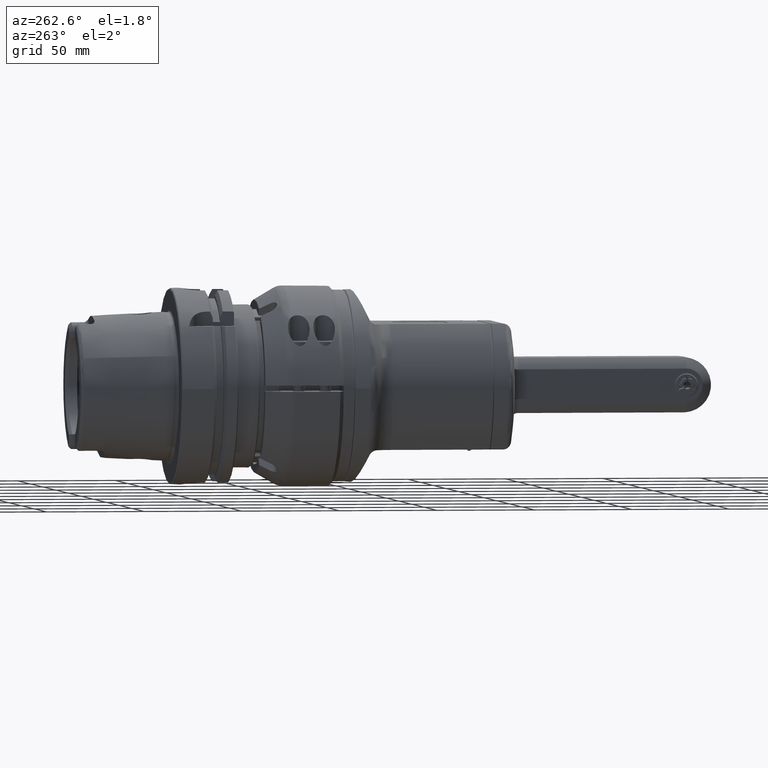
[diagram: clean part render]
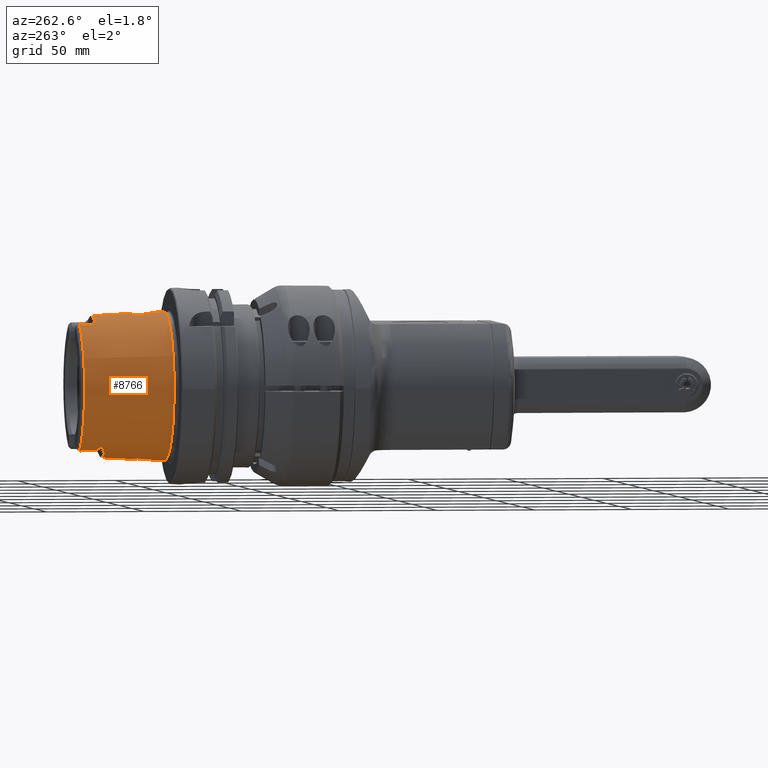
[diagram: same view with one face highlighted and labeled with its STEP entity id]
A machine part, auxiliary view. The second image highlights one B-rep face of the part: STEP entity #8766.
In plain terms, the highlighted conical surface has half-angle 2.868 deg.
Its self-contained STEP definition (entity closure, byte-faithful):
#101=CONICAL_SURFACE('',#9639,36.74017294717,0.0500570901447486);
#200=(
BOUNDED_CURVE()
B_SPLINE_CURVE(2,(#56577,#56578,#56579),.UNSPECIFIED.,.F.,.F.)
B_SPLINE_CURVE_WITH_KNOTS((3,3),(2.97141344392928,3.96265835988855),
 .UNSPECIFIED.)
CURVE()
GEOMETRIC_REPRESENTATION_ITEM()
RATIONAL_B_SPLINE_CURVE((1.02464110441185,1.02628589834782,1.02628589827356))
REPRESENTATION_ITEM('')
);
#201=(
BOUNDED_CURVE()
B_SPLINE_CURVE(2,(#56646,#56647,#56648),.UNSPECIFIED.,.F.,.F.)
B_SPLINE_CURVE_WITH_KNOTS((3,3),(3.9626582701818,4.95390318622074),
 .UNSPECIFIED.)
CURVE()
GEOMETRIC_REPRESENTATION_ITEM()
RATIONAL_B_SPLINE_CURVE((1.02628589827313,1.02628589834766,1.02464110441169))
REPRESENTATION_ITEM('')
);
#277=FACE_BOUND('',#1527,.T.);
#278=FACE_BOUND('',#1528,.T.);
#964=FACE_OUTER_BOUND('',#1526,.T.);
#1526=EDGE_LOOP('',(#7598,#7599,#7600,#7601,#7602,#7603,#7604,#7605,#7606,
#7607,#7608,#7609,#7610,#7611,#7612,#7613,#7614,#7615,#7616,#7617,#7618));
#1527=EDGE_LOOP('',(#7619));
#1528=EDGE_LOOP('',(#7620,#7621));
#1784=B_SPLINE_CURVE_WITH_KNOTS('',3,(#56558,#56559,#56560,#56561,#56562,
#56563,#56564,#56565,#56566,#56567,#56568,#56569,#56570,#56571,#56572,#56573,
#56574,#56575),.UNSPECIFIED.,.F.,.F.,(4,2,2,2,2,2,2,2,4),(1.95351747742074,
1.96415168134067,1.9747858852606,1.99605429310045,2.07500752198644,2.15396075087244,
2.37309502710521,2.59222930333799,2.83524321414784),.UNSPECIFIED.);
#1785=B_SPLINE_CURVE_WITH_KNOTS('',3,(#56581,#56582,#56583,#56584,#56585,
#56586,#56587,#56588,#56589,#56590,#56591,#56592,#56593,#56594,#56595,#56596,
#56597,#56598,#56599),.UNSPECIFIED.,.F.,.F.,(4,2,2,2,2,2,3,2,4),(0.880850159135021,
1.06197193937717,1.12429506029204,1.14773343290938,1.16113788293459,1.16784010794719,
1.1745423329598,1.1812615850908,1.18523491439442),.UNSPECIFIED.);
#1786=B_SPLINE_CURVE_WITH_KNOTS('',3,(#56601,#56602,#56603,#56604,#56605,
#56606,#56607,#56608,#56609,#56610,#56611,#56612),.UNSPECIFIED.,.F.,.F.,
(4,2,2,2,2,4),(-2.21811633364772,-2.19053511535296,-2.02523452835063,-1.9375169475588,
-1.89629131750475,-1.88277978154764),.UNSPECIFIED.);
#1787=B_SPLINE_CURVE_WITH_KNOTS('',3,(#56616,#56617,#56618,#56619,#56620,
#56621,#56622,#56623,#56624,#56625),.UNSPECIFIED.,.F.,.F.,(4,2,2,2,4),(-0.968342178380193,
-0.916829721728276,-0.81436746422335,-0.475336799953219,-0.355883563659341),
 .UNSPECIFIED.);
#1788=B_SPLINE_CURVE_WITH_KNOTS('',3,(#56627,#56628,#56629,#56630,#56631,
#56632,#56633,#56634,#56635,#56636,#56637,#56638,#56639,#56640,#56641,#56642,
#56643,#56644),.UNSPECIFIED.,.F.,.F.,(4,2,2,2,2,2,2,2,4),(0.576465429523074,
0.580438758827661,0.587158010958199,0.593860235970344,0.60056246098249,
0.613966911006781,0.63740528362252,0.699728404533146,0.880850184762865),
 .UNSPECIFIED.);
#1789=B_SPLINE_CURVE_WITH_KNOTS('',3,(#56650,#56651,#56652,#56653,#56654,
#56655,#56656,#56657,#56658,#56659,#56660,#56661,#56662,#56663,#56664,#56665,
#56666,#56667),.UNSPECIFIED.,.F.,.F.,(4,2,2,2,2,2,2,2,4),(1.0717917443354,
1.31480565516204,1.53393993138363,1.75307420760523,1.83202743648706,1.91098066536889,
1.93224907320764,1.94288327712701,1.95351748104638),.UNSPECIFIED.);
#1790=B_SPLINE_CURVE_WITH_KNOTS('',3,(#56671,#56672,#56673,#56674,#56675,
#56676,#56677,#56678),.UNSPECIFIED.,.F.,.F.,(4,2,2,4),(2.25015551751675,
2.37309502814378,2.59222930392852,2.83524321428847),.UNSPECIFIED.);
#1791=B_SPLINE_CURVE_WITH_KNOTS('',3,(#56680,#56681,#56682,#56683,#56684,
#56685,#56686,#56687,#56688,#56689,#56690,#56691,#56692,#56693),
 .UNSPECIFIED.,.F.,.F.,(4,2,2,2,2,2,4),(0.711766951876582,0.73217229522712,
0.759580173348406,0.791109244943153,0.847374258154563,0.994679561113807,
1.15970822158042),.UNSPECIFIED.);
#1792=B_SPLINE_CURVE_WITH_KNOTS('',3,(#56697,#56698,#56699,#56700,#56701,
#56702,#56703,#56704,#56705,#56706,#56707,#56708,#56709,#56710),
 .UNSPECIFIED.,.F.,.F.,(4,2,2,2,2,2,4),(-0.929951198099741,-0.898553991922293,
-0.853770881530642,-0.802983637328384,-0.726748246761294,-0.48788984865174,
-0.375270817784569),.UNSPECIFIED.);
#1793=B_SPLINE_CURVE_WITH_KNOTS('',3,(#56712,#56713,#56714,#56715,#56716,
#56717,#56718,#56719),.UNSPECIFIED.,.F.,.F.,(4,2,2,4),(1.07179174434778,
1.31480565470068,1.53393993048412,1.65687944114178),.UNSPECIFIED.);
#1794=B_SPLINE_CURVE_WITH_KNOTS('',3,(#56722,#56723,#56724,#56725,#56726,
#56727,#56728,#56729,#56730,#56731,#56732,#56733,#56734,#56735,#56736,#56737,
#56738,#56739,#56740,#56741,#56742,#56743,#56744,#56745,#56746,#56747,#56748,
#56749,#56750,#56751,#56752,#56753,#56754,#56755),.UNSPECIFIED.,.T.,.F.,
(4,2,2,2,2,2,2,2,2,2,2,2,2,2,2,2,4),(-3.62526048863598,-3.4004530432976,
-3.17564559795922,-2.95051015909361,-2.72537472022801,-2.5002392813624,
-2.27510384249679,-2.05029639715841,-1.82548895182003,-1.59713724610656,
-1.36878554039308,-1.14076500815155,-0.912744475910015,-0.684723943668482,
-0.456703411426949,-0.228351705713474,0.),.UNSPECIFIED.);
#1795=B_SPLINE_CURVE_WITH_KNOTS('',3,(#56758,#56759,#56760,#56761,#56762,
#56763,#56764,#56765,#56766,#56767,#56768,#56769,#56770,#56771,#56772,#56773,
#56774,#56775),.UNSPECIFIED.,.F.,.F.,(4,2,2,2,2,2,2,2,4),(-3.62042001085126,
-3.3969087829225,-3.16855707720903,-2.9405365449675,-2.71251601272596,-2.48449548048443,
-2.2564749482429,-2.02812324252942,-1.80461203294813),.UNSPECIFIED.);
#1796=B_SPLINE_CURVE_WITH_KNOTS('',3,(#56776,#56777,#56778,#56779,#56780,
#56781,#56782,#56783,#56784,#56785,#56786,#56787,#56788,#56789,#56790,#56791,
#56792,#56793,#56794,#56795,#56796,#56797,#56798),.UNSPECIFIED.,.F.,.F.,
(4,2,2,2,2,2,2,2,2,3,4),(-1.80461203294813,-1.79977153681595,-1.57496409147757,
-1.35015664613919,-1.12502120727358,-0.899885768407974,-0.674750329542366,
-0.449614890676758,-0.224807445338379,0.,0.00484047778471908),
 .UNSPECIFIED.);
#2327=LINE('',#56554,#2958);
#2958=VECTOR('',#11739,36.74017294717);
#3392=CIRCLE('',#9637,37.88261919706);
#3393=CIRCLE('',#9638,37.88261919706);
#3394=CIRCLE('',#9640,35.59772669727);
#3395=CIRCLE('',#9641,36.25402645881);
#3396=CIRCLE('',#9642,35.59772669727);
#3397=CIRCLE('',#9643,36.00353175058);
#3398=CIRCLE('',#9644,35.59772669727);
#4151=VERTEX_POINT('',#56547);
#4152=VERTEX_POINT('',#56548);
#4153=VERTEX_POINT('',#56553);
#4154=VERTEX_POINT('',#56555);
#4155=VERTEX_POINT('',#56557);
#4156=VERTEX_POINT('',#56576);
#4157=VERTEX_POINT('',#56580);
#4158=VERTEX_POINT('',#56600);
#4159=VERTEX_POINT('',#56613);
#4160=VERTEX_POINT('',#56615);
#4161=VERTEX_POINT('',#56626);
#4162=VERTEX_POINT('',#56645);
#4163=VERTEX_POINT('',#56649);
#4164=VERTEX_POINT('',#56668);
#4165=VERTEX_POINT('',#56670);
#4166=VERTEX_POINT('',#56679);
#4167=VERTEX_POINT('',#56694);
#4168=VERTEX_POINT('',#56696);
#4169=VERTEX_POINT('',#56711);
#4170=VERTEX_POINT('',#56721);
#4171=VERTEX_POINT('',#56756);
#4172=VERTEX_POINT('',#56757);
#5338=EDGE_CURVE('',#4151,#4152,#3392,.T.);
#5340=EDGE_CURVE('',#4152,#4151,#3393,.T.);
#5341=EDGE_CURVE('',#4151,#4153,#2327,.T.);
#5342=EDGE_CURVE('',#4154,#4153,#3394,.T.);
#5343=EDGE_CURVE('',#4155,#4154,#1784,.T.);
#5344=EDGE_CURVE('',#4156,#4155,#200,.T.);
#5345=EDGE_CURVE('',#4157,#4156,#1785,.T.);
#5346=EDGE_CURVE('',#4158,#4157,#1786,.T.);
#5347=EDGE_CURVE('',#4159,#4158,#3395,.T.);
#5348=EDGE_CURVE('',#4160,#4159,#1787,.T.);
#5349=EDGE_CURVE('',#4161,#4160,#1788,.T.);
#5350=EDGE_CURVE('',#4162,#4161,#201,.T.);
#5351=EDGE_CURVE('',#4163,#4162,#1789,.T.);
#5352=EDGE_CURVE('',#4164,#4163,#3396,.T.);
#5353=EDGE_CURVE('',#4165,#4164,#1790,.T.);
#5354=EDGE_CURVE('',#4165,#4166,#1791,.T.);
#5355=EDGE_CURVE('',#4167,#4166,#3397,.T.);
#5356=EDGE_CURVE('',#4168,#4167,#1792,.T.);
#5357=EDGE_CURVE('',#4169,#4168,#1793,.T.);
#5358=EDGE_CURVE('',#4153,#4169,#3398,.T.);
#5359=EDGE_CURVE('',#4170,#4170,#1794,.T.);
#5360=EDGE_CURVE('',#4171,#4172,#1795,.T.);
#5361=EDGE_CURVE('',#4172,#4171,#1796,.T.);
#7598=ORIENTED_EDGE('',*,*,#5338,.F.);
#7599=ORIENTED_EDGE('',*,*,#5341,.T.);
#7600=ORIENTED_EDGE('',*,*,#5342,.F.);
#7601=ORIENTED_EDGE('',*,*,#5343,.F.);
#7602=ORIENTED_EDGE('',*,*,#5344,.F.);
#7603=ORIENTED_EDGE('',*,*,#5345,.F.);
#7604=ORIENTED_EDGE('',*,*,#5346,.F.);
#7605=ORIENTED_EDGE('',*,*,#5347,.F.);
#7606=ORIENTED_EDGE('',*,*,#5348,.F.);
#7607=ORIENTED_EDGE('',*,*,#5349,.F.);
#7608=ORIENTED_EDGE('',*,*,#5350,.F.);
#7609=ORIENTED_EDGE('',*,*,#5351,.F.);
#7610=ORIENTED_EDGE('',*,*,#5352,.F.);
#7611=ORIENTED_EDGE('',*,*,#5353,.F.);
#7612=ORIENTED_EDGE('',*,*,#5354,.T.);
#7613=ORIENTED_EDGE('',*,*,#5355,.F.);
#7614=ORIENTED_EDGE('',*,*,#5356,.F.);
#7615=ORIENTED_EDGE('',*,*,#5357,.F.);
#7616=ORIENTED_EDGE('',*,*,#5358,.F.);
#7617=ORIENTED_EDGE('',*,*,#5341,.F.);
#7618=ORIENTED_EDGE('',*,*,#5340,.F.);
#7619=ORIENTED_EDGE('',*,*,#5359,.T.);
#7620=ORIENTED_EDGE('',*,*,#5360,.T.);
#7621=ORIENTED_EDGE('',*,*,#5361,.T.);
#8766=ADVANCED_FACE('',(#964,#277,#278),#101,.T.);
#9637=AXIS2_PLACEMENT_3D('',#56549,#11732,#11733);
#9638=AXIS2_PLACEMENT_3D('',#56551,#11735,#11736);
#9639=AXIS2_PLACEMENT_3D('',#56552,#11737,#11738);
#9640=AXIS2_PLACEMENT_3D('',#56556,#11740,#11741);
#9641=AXIS2_PLACEMENT_3D('',#56614,#11742,#11743);
#9642=AXIS2_PLACEMENT_3D('',#56669,#11744,#11745);
#9643=AXIS2_PLACEMENT_3D('',#56695,#11746,#11747);
#9644=AXIS2_PLACEMENT_3D('',#56720,#11748,#11749);
#11732=DIRECTION('center_axis',(0.,-1.,1.2270676010003E-16));
#11733=DIRECTION('ref_axis',(-0.901999999999984,5.2976929516558E-17,0.431736030463093));
#11735=DIRECTION('center_axis',(0.,-1.,1.2270676010003E-16));
#11736=DIRECTION('ref_axis',(-0.901999999999984,5.2976929516558E-17,0.431736030463093));
#11737=DIRECTION('center_axis',(0.,-1.,1.2270676010003E-16));
#11738=DIRECTION('ref_axis',(0.901999999999984,-5.29769295165608E-17,-0.431736030463092));
#11739=DIRECTION('',(0.045132641563491,0.998747405449354,-0.0216024251806382));
#11740=DIRECTION('center_axis',(0.,1.,-1.2270676010003E-16));
#11741=DIRECTION('ref_axis',(-0.423589941730021,-1.11154415691394E-16,-0.905854050752745));
#11742=DIRECTION('center_axis',(0.,1.,-1.2270676010003E-16));
#11743=DIRECTION('ref_axis',(0.352841176761012,-1.14814657441685E-16,-0.935683228438933));
#11744=DIRECTION('center_axis',(0.,1.,-1.2270676010003E-16));
#11745=DIRECTION('ref_axis',(0.423589941729375,1.11154415691451E-16,0.905854050753047));
#11746=DIRECTION('center_axis',(0.,1.,-1.2270676010003E-16));
#11747=DIRECTION('ref_axis',(-0.345044748677395,1.15170876028783E-16,0.938586235468086));
#11748=DIRECTION('center_axis',(0.,1.,-1.2270676010003E-16));
#11749=DIRECTION('ref_axis',(-0.423589941730021,-1.11154415691394E-16,-0.905854050752745));
#56547=CARTESIAN_POINT('',(-34.1701225157541,85.4924722021158,16.355291635688));
#56548=CARTESIAN_POINT('',(34.1701225157455,85.4924722021194,-16.3552916356846));
#56549=CARTESIAN_POINT('Origin',(-4.060069640028E-12,85.49247220212,-3.05827066001153E-16));
#56551=CARTESIAN_POINT('Origin',(-4.060069640028E-12,85.49247220212,-3.05827066001153E-16));
#56552=CARTESIAN_POINT('Origin',(-4.060069640028E-12,108.29627228904,-3.10400748128979E-15));
#56553=CARTESIAN_POINT('',(-32.1091494809456,131.100072375972,15.3688212177916));
#56554=CARTESIAN_POINT('',(-33.1396359983508,108.29627228904,15.8620564267387));
#56555=CARTESIAN_POINT('',(-15.0788389774241,131.100072375969,-32.2463449263182));
#56556=CARTESIAN_POINT('Origin',(-4.04773852177651E-12,131.10007237597,
-5.90218791012513E-15));
#56557=CARTESIAN_POINT('',(-17.2220784314341,122.309422442259,-31.6567015512251));
#56558=CARTESIAN_POINT('Ctrl Pts',(-17.2220784153372,122.309422442311,-31.6567015599883));
#56559=CARTESIAN_POINT('Ctrl Pts',(-17.1909406705659,122.309422440013,-31.6736413124103));
#56560=CARTESIAN_POINT('Ctrl Pts',(-17.1602817479295,122.316165079955,-31.6898757871768));
#56561=CARTESIAN_POINT('Ctrl Pts',(-17.1010841481202,122.340529544632,-31.7204736705879));
#56562=CARTESIAN_POINT('Ctrl Pts',(-17.0725575989163,122.358192511476,-31.7348277686473));
#56563=CARTESIAN_POINT('Ctrl Pts',(-16.9913409982195,122.421686058809,-31.7748237733014));
#56564=CARTESIAN_POINT('Ctrl Pts',(-16.943119847744,122.478559894859,-31.7973063151057));
#56565=CARTESIAN_POINT('Ctrl Pts',(-16.7539351570489,122.740236803165,-31.8829715413045));
#56566=CARTESIAN_POINT('Ctrl Pts',(-16.6480990474377,122.999440628543,-31.9234627110339));
#56567=CARTESIAN_POINT('Ctrl Pts',(-16.4551734621441,123.532137453558,-31.9933264788));
#56568=CARTESIAN_POINT('Ctrl Pts',(-16.3734687541302,123.807964404626,-32.019615695522));
#56569=CARTESIAN_POINT('Ctrl Pts',(-16.1127586050632,124.76352042181,-32.0985687614792));
#56570=CARTESIAN_POINT('Ctrl Pts',(-15.9615734496456,125.490974546385,-32.1330159836246));
#56571=CARTESIAN_POINT('Ctrl Pts',(-15.682637857892,126.976696146467,-32.1872927901172));
#56572=CARTESIAN_POINT('Ctrl Pts',(-15.5577250750558,127.735552357204,-32.2055397465087));
#56573=CARTESIAN_POINT('Ctrl Pts',(-15.3110707220721,129.359161243694,-32.2335467174601));
#56574=CARTESIAN_POINT('Ctrl Pts',(-15.1915252095644,130.226206429029,-32.2419810937322));
#56575=CARTESIAN_POINT('Ctrl Pts',(-15.0788389774374,131.10007237597,-32.2463449263096));
#56576=CARTESIAN_POINT('',(-19.7607926843341,120.000000000089,-30.2755742002442));
#56577=CARTESIAN_POINT('Ctrl Pts',(-19.760792684367,120.000000000118,-30.2755742002257));
#56578=CARTESIAN_POINT('Ctrl Pts',(-18.4894012019291,122.309422546289,-30.9672446189069));
#56579=CARTESIAN_POINT('Ctrl Pts',(-17.2220784313653,122.309422442182,-31.6567015512759));
#56580=CARTESIAN_POINT('',(-17.2958116191341,119.229703254579,-31.792233940204));
#56581=CARTESIAN_POINT('Ctrl Pts',(-17.2958117319328,119.229703254563,-31.7922338788359));
#56582=CARTESIAN_POINT('Ctrl Pts',(-17.8261498365252,119.229703248731,-31.5037159987098));
#56583=CARTESIAN_POINT('Ctrl Pts',(-18.4507527759537,119.273514318881,-31.1392529649616));
#56584=CARTESIAN_POINT('Ctrl Pts',(-19.1249903159267,119.429572390918,-30.7155145694505));
#56585=CARTESIAN_POINT('Ctrl Pts',(-19.3283468362131,119.489438730329,-30.5843319325354));
#56586=CARTESIAN_POINT('Ctrl Pts',(-19.5479485937452,119.598596989926,-30.4374233452039));
#56587=CARTESIAN_POINT('Ctrl Pts',(-19.6175869794749,119.639846459348,-30.39010851942));
#56588=CARTESIAN_POINT('Ctrl Pts',(-19.7001264343484,119.71014442129,-30.3324232998638));
#56589=CARTESIAN_POINT('Ctrl Pts',(-19.7308081134273,119.741559546607,-30.3105871269043));
#56590=CARTESIAN_POINT('Ctrl Pts',(-19.7647782233519,119.796112903471,-30.2851739589189));
#56591=CARTESIAN_POINT('Ctrl Pts',(-19.7741376000108,119.815516113189,-30.2779004366636));
#56592=CARTESIAN_POINT('Ctrl Pts',(-19.7867895923066,119.856434014018,-30.2671847325074));
#56593=CARTESIAN_POINT('Ctrl Pts',(-19.7900983204068,119.87794119344,-30.2637329007029));
#56594=CARTESIAN_POINT('Ctrl Pts',(-19.7894865307163,119.900253958639,-30.2627973298188));
#56595=CARTESIAN_POINT('Ctrl Pts',(-19.7888731867636,119.922623409803,-30.2618593821006));
#56596=CARTESIAN_POINT('Ctrl Pts',(-19.7843672324716,119.944184953197,-30.2635160267487));
#56597=CARTESIAN_POINT('Ctrl Pts',(-19.7724984310362,119.976848285303,-30.2693164621919));
#56598=CARTESIAN_POINT('Ctrl Pts',(-19.7670550943,119.988624628288,-30.2721672844563));
#56599=CARTESIAN_POINT('Ctrl Pts',(-19.7607926843164,120.000000000074,-30.2755742002614));
#56600=CARTESIAN_POINT('',(-12.7919133580441,117.999999999998,-33.9222845209035));
#56601=CARTESIAN_POINT('Ctrl Pts',(-12.7919133580431,118.,-33.922284520901));
#56602=CARTESIAN_POINT('Ctrl Pts',(-12.9462563527709,118.,-33.8640825971844));
#56603=CARTESIAN_POINT('Ctrl Pts',(-13.1078601684653,118.00788237048,-33.8015214636964));
#56604=CARTESIAN_POINT('Ctrl Pts',(-14.2887001222671,118.126826413066,-33.3303756139555));
#56605=CARTESIAN_POINT('Ctrl Pts',(-15.1856660504596,118.517364328609,-32.9013763546066));
#56606=CARTESIAN_POINT('Ctrl Pts',(-16.2665692971439,118.979220737936,-32.3477305475557));
#56607=CARTESIAN_POINT('Ctrl Pts',(-16.5464918144985,119.093921469171,-32.1975783895266));
#56608=CARTESIAN_POINT('Ctrl Pts',(-16.9276609812447,119.193538066503,-31.9921216718047));
#56609=CARTESIAN_POINT('Ctrl Pts',(-17.0495968556438,119.216190012626,-31.9260329377716));
#56610=CARTESIAN_POINT('Ctrl Pts',(-17.2149616884379,119.228227541059,-31.8362033218791));
#56611=CARTESIAN_POINT('Ctrl Pts',(-17.2554367563616,119.229703255021,-31.8141989276617));
#56612=CARTESIAN_POINT('Ctrl Pts',(-17.2958116191327,119.229703254577,-31.7922339402014));
#56613=CARTESIAN_POINT('',(12.7919133580459,117.999999999988,-33.9222845208935));
#56614=CARTESIAN_POINT('Origin',(-4.060069640028E-12,118.,-4.29472047619454E-15));
#56615=CARTESIAN_POINT('',(17.2958116191559,119.229703254579,-31.792233940194));
#56616=CARTESIAN_POINT('Ctrl Pts',(17.295811619151,119.229703254615,-31.7922339401848));
#56617=CARTESIAN_POINT('Ctrl Pts',(17.2061086581328,119.229703255601,-31.8410347107309));
#56618=CARTESIAN_POINT('Ctrl Pts',(17.1184606066973,119.222421721539,-31.8886491594871));
#56619=CARTESIAN_POINT('Ctrl Pts',(16.8557389483145,119.181972694756,-32.0310465175738));
#56620=CARTESIAN_POINT('Ctrl Pts',(16.6786340103077,119.130256357617,-32.1266727712629));
#56621=CARTESIAN_POINT('Ctrl Pts',(15.844758539429,118.827193141583,-32.5702452190954));
#56622=CARTESIAN_POINT('Ctrl Pts',(15.0274939144756,118.393492827711,-32.9882754200444));
#56623=CARTESIAN_POINT('Ctrl Pts',(13.7106306084529,118.076543459956,-33.5594226413758));
#56624=CARTESIAN_POINT('Ctrl Pts',(13.271713052681,117.99999999999,-33.7413546038922));
#56625=CARTESIAN_POINT('Ctrl Pts',(12.7919133580472,117.999999999991,-33.9222845208968));
#56626=CARTESIAN_POINT('',(19.7607926841759,120.000000000079,-30.2755742003442));
#56627=CARTESIAN_POINT('Ctrl Pts',(19.7607926841618,120.000000000068,-30.2755742003574));
#56628=CARTESIAN_POINT('Ctrl Pts',(19.7670550941475,119.988624628279,-30.2721672845511));
#56629=CARTESIAN_POINT('Ctrl Pts',(19.7724984308854,119.976848285291,-30.2693164622859));
#56630=CARTESIAN_POINT('Ctrl Pts',(19.7843672323216,119.944184953183,-30.2635160268423));
#56631=CARTESIAN_POINT('Ctrl Pts',(19.7888731866133,119.92262340979,-30.2618593821944));
#56632=CARTESIAN_POINT('Ctrl Pts',(19.7900983202564,119.87794119343,-30.2637329007966));
#56633=CARTESIAN_POINT('Ctrl Pts',(19.7867895921564,119.856434014009,-30.2671847326008));
#56634=CARTESIAN_POINT('Ctrl Pts',(19.7741375998613,119.815516113182,-30.2779004367564));
#56635=CARTESIAN_POINT('Ctrl Pts',(19.7647782232029,119.796112903465,-30.2851739590112));
#56636=CARTESIAN_POINT('Ctrl Pts',(19.7308081132802,119.741559546605,-30.3105871269949));
#56637=CARTESIAN_POINT('Ctrl Pts',(19.700126434203,119.71014442129,-30.332423299953));
#56638=CARTESIAN_POINT('Ctrl Pts',(19.617586979334,119.639846459351,-30.3901085195054));
#56639=CARTESIAN_POINT('Ctrl Pts',(19.5479485936082,119.598596989932,-30.4374233452863));
#56640=CARTESIAN_POINT('Ctrl Pts',(19.3283468360883,119.489438730342,-30.5843319326083));
#56641=CARTESIAN_POINT('Ctrl Pts',(19.1249903158133,119.429572390934,-30.715514569515));
#56642=CARTESIAN_POINT('Ctrl Pts',(18.4507527758785,119.273514318906,-31.1392529649993));
#56643=CARTESIAN_POINT('Ctrl Pts',(17.8261498353228,119.229703254591,-31.5037159965867));
#56644=CARTESIAN_POINT('Ctrl Pts',(17.2958117319249,119.229703254591,-31.7922338788342));
#56645=CARTESIAN_POINT('',(17.2220784310259,122.309422441989,-31.6567015514451));
#56646=CARTESIAN_POINT('Ctrl Pts',(17.2220784309622,122.30942244181,-31.656701551512));
#56647=CARTESIAN_POINT('Ctrl Pts',(18.4894012016372,122.309422546284,-30.9672446190825));
#56648=CARTESIAN_POINT('Ctrl Pts',(19.7607926841856,120.000000000091,-30.2755742003404));
#56649=CARTESIAN_POINT('',(15.0788389774159,131.100072375969,-32.2463449263182));
#56650=CARTESIAN_POINT('Ctrl Pts',(15.0788389774255,131.10007237597,-32.2463449263114));
#56651=CARTESIAN_POINT('Ctrl Pts',(15.1915252095644,130.226206428918,-32.2419810937346));
#56652=CARTESIAN_POINT('Ctrl Pts',(15.3110707220854,129.359161243472,-32.2335467174623));
#56653=CARTESIAN_POINT('Ctrl Pts',(15.5577250750851,127.735552356871,-32.2055397465092));
#56654=CARTESIAN_POINT('Ctrl Pts',(15.6826378579215,126.976696146129,-32.1872927901176));
#56655=CARTESIAN_POINT('Ctrl Pts',(15.9615734496757,125.49097454604,-32.1330159836249));
#56656=CARTESIAN_POINT('Ctrl Pts',(16.1127586050939,124.763520421461,-32.0985687614793));
#56657=CARTESIAN_POINT('Ctrl Pts',(16.3734687541618,123.807964404272,-32.0196156955215));
#56658=CARTESIAN_POINT('Ctrl Pts',(16.455173462176,123.532137453203,-31.9933264787994));
#56659=CARTESIAN_POINT('Ctrl Pts',(16.6480990474702,122.999440628187,-31.9234627110328));
#56660=CARTESIAN_POINT('Ctrl Pts',(16.7539351570817,122.740236802808,-31.8829715413032));
#56661=CARTESIAN_POINT('Ctrl Pts',(16.9431198477778,122.478559894501,-31.7973063151037));
#56662=CARTESIAN_POINT('Ctrl Pts',(16.9913409982536,122.421686058451,-31.7748237732992));
#56663=CARTESIAN_POINT('Ctrl Pts',(17.0725575989509,122.358192511118,-31.7348277686447));
#56664=CARTESIAN_POINT('Ctrl Pts',(17.1010841481549,122.340529544275,-31.7204736705851));
#56665=CARTESIAN_POINT('Ctrl Pts',(17.1602817479645,122.316165079598,-31.6898757871738));
#56666=CARTESIAN_POINT('Ctrl Pts',(17.1909406705374,122.309422441953,-31.6736413122903));
#56667=CARTESIAN_POINT('Ctrl Pts',(17.2220784153724,122.309422441954,-31.656701559985));
#56668=CARTESIAN_POINT('',(15.0788389774059,131.100072375741,32.2463449263418));
#56669=CARTESIAN_POINT('Origin',(-4.04773852177651E-12,131.10007237597,
-5.90218791012513E-15));
#56670=CARTESIAN_POINT('',(16.0738114170159,124.999999999981,32.104236002674));
#56671=CARTESIAN_POINT('Ctrl Pts',(16.0738114170184,124.999999999982,32.1042360026792));
#56672=CARTESIAN_POINT('Ctrl Pts',(15.9831851934085,125.40538976505,32.1268973905207));
#56673=CARTESIAN_POINT('Ctrl Pts',(15.9003503852971,125.817072870104,32.1449291009408));
#56674=CARTESIAN_POINT('Ctrl Pts',(15.6826378579059,126.976696145585,32.1872927901556));
#56675=CARTESIAN_POINT('Ctrl Pts',(15.5577250750672,127.735552356349,32.2055397465469));
#56676=CARTESIAN_POINT('Ctrl Pts',(15.3110707220534,129.35916124306,32.2335467175004));
#56677=CARTESIAN_POINT('Ctrl Pts',(15.191525209522,130.226206428595,32.2419810937725));
#56678=CARTESIAN_POINT('Ctrl Pts',(15.0788389773738,131.100072375737,32.2463449263484));
#56679=CARTESIAN_POINT('',(12.4228295644059,122.999999999992,33.7924193293147));
#56680=CARTESIAN_POINT('Ctrl Pts',(16.0738114170158,124.999999999981,32.1042360026806));
#56681=CARTESIAN_POINT('Ctrl Pts',(16.0827312175113,124.96009989509,32.1020055769781));
#56682=CARTESIAN_POINT('Ctrl Pts',(16.0870940726199,124.919061705604,32.1021180063972));
#56683=CARTESIAN_POINT('Ctrl Pts',(16.0839989881563,124.819541596349,32.1092454079948));
#56684=CARTESIAN_POINT('Ctrl Pts',(16.072034440001,124.764106689047,32.11834997361));
#56685=CARTESIAN_POINT('Ctrl Pts',(16.0290258082421,124.64812853062,32.1463311246156));
#56686=CARTESIAN_POINT('Ctrl Pts',(15.9924646289958,124.579762532288,32.1684158692367));
#56687=CARTESIAN_POINT('Ctrl Pts',(15.8335675482527,124.365647999464,32.2590183941683));
#56688=CARTESIAN_POINT('Ctrl Pts',(15.6937776253042,124.239181946133,32.3343378896113));
#56689=CARTESIAN_POINT('Ctrl Pts',(15.285621093207,123.905716997182,32.5491942433267));
#56690=CARTESIAN_POINT('Ctrl Pts',(14.8464261333401,123.630467395445,32.7703166106151));
#56691=CARTESIAN_POINT('Ctrl Pts',(13.7398962869335,123.16245530691,33.2760671292929));
#56692=CARTESIAN_POINT('Ctrl Pts',(13.0891858728803,123.000000000003,33.5474522327443));
#56693=CARTESIAN_POINT('Ctrl Pts',(12.4228295644075,123.,33.7924193293188));
#56694=CARTESIAN_POINT('',(-12.4228295643841,123.000000000002,33.7924193293247));
#56695=CARTESIAN_POINT('Origin',(-4.0498150872655E-12,123.,-4.90825427470424E-15));
#56696=CARTESIAN_POINT('',(-16.0738114170541,125.000000000001,32.104236002664));
#56697=CARTESIAN_POINT('Ctrl Pts',(-16.073811417059,125.000000000003,32.1042360026618));
#56698=CARTESIAN_POINT('Ctrl Pts',(-16.0837119187055,124.955713016872,32.1017603493827));
#56699=CARTESIAN_POINT('Ctrl Pts',(-16.0878449887303,124.910677567991,32.1022116821973));
#56700=CARTESIAN_POINT('Ctrl Pts',(-16.0815361027193,124.798635791242,32.1116506903077));
#56701=CARTESIAN_POINT('Ctrl Pts',(-16.064379243458,124.736037021965,32.1237574005346));
#56702=CARTESIAN_POINT('Ctrl Pts',(-16.009233616648,124.609439699166,32.1583644916647));
#56703=CARTESIAN_POINT('Ctrl Pts',(-15.9633700088968,124.533791244105,32.185471495734));
#56704=CARTESIAN_POINT('Ctrl Pts',(-15.7849188457532,124.318351865172,32.2855092338161));
#56705=CARTESIAN_POINT('Ctrl Pts',(-15.6445379523189,124.195106363047,32.3607302130264));
#56706=CARTESIAN_POINT('Ctrl Pts',(-15.1023350317036,123.773752731183,32.643507988288));
#56707=CARTESIAN_POINT('Ctrl Pts',(-14.4191477338859,123.379875870544,32.9810214495384));
#56708=CARTESIAN_POINT('Ctrl Pts',(-13.2256793302848,123.059942340653,33.4856959053612));
#56709=CARTESIAN_POINT('Ctrl Pts',(-12.8260801510063,123.,33.6441756282647));
#56710=CARTESIAN_POINT('Ctrl Pts',(-12.4228295643859,122.999999999999,33.7924193293298));
#56711=CARTESIAN_POINT('',(-15.0788389773541,131.100072375971,32.2463449263418));
#56712=CARTESIAN_POINT('Ctrl Pts',(-15.0788389773554,131.100072375972,32.2463449263479));
#56713=CARTESIAN_POINT('Ctrl Pts',(-15.1915252095013,130.226206428855,32.2419810937717));
#56714=CARTESIAN_POINT('Ctrl Pts',(-15.3110707220299,129.359161243345,32.2335467174996));
#56715=CARTESIAN_POINT('Ctrl Pts',(-15.5577250750402,127.735552356664,32.2055397465463));
#56716=CARTESIAN_POINT('Ctrl Pts',(-15.6826378578787,126.976696145904,32.187292790155));
#56717=CARTESIAN_POINT('Ctrl Pts',(-15.9003503852892,125.817072870324,32.1449291009364));
#56718=CARTESIAN_POINT('Ctrl Pts',(-15.9831851934225,125.405389765169,32.1268973905112));
#56719=CARTESIAN_POINT('Ctrl Pts',(-16.0738114170593,125.000000000003,32.1042360026617));
#56720=CARTESIAN_POINT('Origin',(-4.04773852177651E-12,131.10007237597,
-5.90218791012513E-15));
#56721=CARTESIAN_POINT('',(5.99998877505505,98.0000001634272,36.7696907674567));
#56722=CARTESIAN_POINT('Ctrl Pts',(-5.99980470310251,98.0484099646541,36.7672621583658));
#56723=CARTESIAN_POINT('Ctrl Pts',(-5.99376601288193,98.7968294738454,36.7302566027818));
#56724=CARTESIAN_POINT('Ctrl Pts',(-5.83863229740389,99.5947887680376,36.7160376066793));
#56725=CARTESIAN_POINT('Ctrl Pts',(-5.22123197919134,101.061325726204,36.73470261032));
#56726=CARTESIAN_POINT('Ctrl Pts',(-4.75898873129066,101.729930158619,36.7662312838117));
#56727=CARTESIAN_POINT('Ctrl Pts',(-3.69589739220896,102.785638045067,36.8351264327473));
#56728=CARTESIAN_POINT('Ctrl Pts',(-3.02341326457652,103.243409985977,36.8769209204506));
#56729=CARTESIAN_POINT('Ctrl Pts',(-1.55072413050941,103.850609443021,36.937701975756));
#56730=CARTESIAN_POINT('Ctrl Pts',(-0.75045146288942,104.000000000001,36.9554116418801));
#56731=CARTESIAN_POINT('Ctrl Pts',(0.750451462881301,104.000000000001,36.9554116418801));
#56732=CARTESIAN_POINT('Ctrl Pts',(1.55072413050129,103.850609443021,36.937701975756));
#56733=CARTESIAN_POINT('Ctrl Pts',(3.0234132645684,103.243409985977,36.8769209204506));
#56734=CARTESIAN_POINT('Ctrl Pts',(3.69589739220084,102.785638045067,36.8351264327473));
#56735=CARTESIAN_POINT('Ctrl Pts',(4.75898873128255,101.729930158619,36.7662312838117));
#56736=CARTESIAN_POINT('Ctrl Pts',(5.22123197918322,101.061325726204,36.73470261032));
#56737=CARTESIAN_POINT('Ctrl Pts',(5.83863229739577,99.5947887680376,36.7160376066793));
#56738=CARTESIAN_POINT('Ctrl Pts',(5.99376601287381,98.7968294738454,36.7302566027818));
#56739=CARTESIAN_POINT('Ctrl Pts',(6.00593859785961,97.2881910526166,36.8048511346817));
#56740=CARTESIAN_POINT('Ctrl Pts',(5.85928385967152,96.4785917555153,36.8708767598658));
#56741=CARTESIAN_POINT('Ctrl Pts',(5.25235338608637,94.990236462429,37.0375277265104));
#56742=CARTESIAN_POINT('Ctrl Pts',(4.79218191278853,94.3112831208856,37.136767339581));
#56743=CARTESIAN_POINT('Ctrl Pts',(3.72803392132978,93.2385143169141,37.3126357459111));
#56744=CARTESIAN_POINT('Ctrl Pts',(3.05289373425717,92.7725511517208,37.4008862632968));
#56745=CARTESIAN_POINT('Ctrl Pts',(1.56898843440196,92.1532353223022,37.5235103898561));
#56746=CARTESIAN_POINT('Ctrl Pts',(0.760068440801051,92.0000000000005,37.5565989416493));
#56747=CARTESIAN_POINT('Ctrl Pts',(-0.760068440809171,92.0000000000005,
37.5565989416493));
#56748=CARTESIAN_POINT('Ctrl Pts',(-1.56898843441009,92.1532353223022,37.5235103898561));
#56749=CARTESIAN_POINT('Ctrl Pts',(-3.0528937342653,92.7725511517208,37.4008862632968));
#56750=CARTESIAN_POINT('Ctrl Pts',(-3.7280339213379,93.2385143169141,37.3126357459111));
#56751=CARTESIAN_POINT('Ctrl Pts',(-4.79218191279665,94.3112831208856,37.136767339581));
#56752=CARTESIAN_POINT('Ctrl Pts',(-5.25235338609449,94.990236462429,37.0375277265104));
#56753=CARTESIAN_POINT('Ctrl Pts',(-5.85928385967964,96.4785917555153,36.8708767598657));
#56754=CARTESIAN_POINT('Ctrl Pts',(-6.00593859786773,97.2881910526166,36.8048511346817));
#56755=CARTESIAN_POINT('Ctrl Pts',(-5.99980470310251,98.0484099646541,36.7672621583658));
#56756=CARTESIAN_POINT('',(-6.00000000000406,98.0000001837391,-36.7696876464039));
#56757=CARTESIAN_POINT('',(5.99999999999594,98.0000000000005,-36.7696876557307));
#56758=CARTESIAN_POINT('Ctrl Pts',(-6.00000000000406,98.0000001837391,-36.7696876464039));
#56759=CARTESIAN_POINT('Ctrl Pts',(-6.00000002285219,97.2538925362074,-36.8075612252937));
#56760=CARTESIAN_POINT('Ctrl Pts',(-5.85285116528596,96.4628170742853,-36.8726430490628));
#56761=CARTESIAN_POINT('Ctrl Pts',(-5.25235338609449,94.990236462429,-37.0375277265104));
#56762=CARTESIAN_POINT('Ctrl Pts',(-4.79218191279665,94.3112831208856,-37.136767339581));
#56763=CARTESIAN_POINT('Ctrl Pts',(-3.7280339213379,93.2385143169141,-37.3126357459111));
#56764=CARTESIAN_POINT('Ctrl Pts',(-3.05289373426529,92.7725511517208,-37.4008862632968));
#56765=CARTESIAN_POINT('Ctrl Pts',(-1.56898843441007,92.1532353223022,-37.5235103898561));
#56766=CARTESIAN_POINT('Ctrl Pts',(-0.760068440809172,92.0000000000005,
-37.5565989416493));
#56767=CARTESIAN_POINT('Ctrl Pts',(0.760068440801051,92.0000000000005,-37.5565989416493));
#56768=CARTESIAN_POINT('Ctrl Pts',(1.56898843440196,92.1532353223022,-37.5235103898561));
#56769=CARTESIAN_POINT('Ctrl Pts',(3.05289373425717,92.7725511517208,-37.4008862632968));
#56770=CARTESIAN_POINT('Ctrl Pts',(3.72803392132978,93.2385143169141,-37.3126357459111));
#56771=CARTESIAN_POINT('Ctrl Pts',(4.79218191278853,94.3112831208856,-37.136767339581));
#56772=CARTESIAN_POINT('Ctrl Pts',(5.25235338608637,94.990236462429,-37.0375277265104));
#56773=CARTESIAN_POINT('Ctrl Pts',(5.85285114089521,96.4628170144925,-36.8726430557578));
#56774=CARTESIAN_POINT('Ctrl Pts',(5.99999999999594,97.2538924063025,-36.807561235616));
#56775=CARTESIAN_POINT('Ctrl Pts',(5.99999999999594,98.0000000000006,-36.7696876557307));
#56776=CARTESIAN_POINT('Ctrl Pts',(5.99999999999594,98.0000000000006,-36.7696876557307));
#56777=CARTESIAN_POINT('Ctrl Pts',(5.99999999999594,98.0161581646324,-36.7688674422064));
#56778=CARTESIAN_POINT('Ctrl Pts',(5.99993472662013,98.0322951881438,-36.7680589524773));
#56779=CARTESIAN_POINT('Ctrl Pts',(5.99376601287381,98.7968294738454,-36.7302566027818));
#56780=CARTESIAN_POINT('Ctrl Pts',(5.83863229739577,99.5947887680376,-36.7160376066793));
#56781=CARTESIAN_POINT('Ctrl Pts',(5.22123197918322,101.061325726204,-36.73470261032));
#56782=CARTESIAN_POINT('Ctrl Pts',(4.75898873128255,101.729930158619,-36.7662312838117));
#56783=CARTESIAN_POINT('Ctrl Pts',(3.69589739220084,102.785638045067,-36.8351264327473));
#56784=CARTESIAN_POINT('Ctrl Pts',(3.0234132645684,103.243409985977,-36.8769209204506));
#56785=CARTESIAN_POINT('Ctrl Pts',(1.55072413050129,103.850609443021,-36.937701975756));
#56786=CARTESIAN_POINT('Ctrl Pts',(0.750451462881301,104.000000000001,-36.9554116418801));
#56787=CARTESIAN_POINT('Ctrl Pts',(-0.750451462889419,104.000000000001,
-36.9554116418801));
#56788=CARTESIAN_POINT('Ctrl Pts',(-1.5507241305094,103.850609443021,-36.937701975756));
#56789=CARTESIAN_POINT('Ctrl Pts',(-3.02341326457652,103.243409985977,-36.8769209204506));
#56790=CARTESIAN_POINT('Ctrl Pts',(-3.69589739220896,102.785638045067,-36.8351264327473));
#56791=CARTESIAN_POINT('Ctrl Pts',(-4.75898873129066,101.729930158619,-36.7662312838117));
#56792=CARTESIAN_POINT('Ctrl Pts',(-5.22123197919134,101.061325726204,-36.73470261032));
#56793=CARTESIAN_POINT('Ctrl Pts',(-5.83863229740389,99.5947887680376,-36.7160376066793));
#56794=CARTESIAN_POINT('Ctrl Pts',(-5.99376601288193,98.7968294738454,-36.7302566027818));
#56795=CARTESIAN_POINT('Ctrl Pts',(-5.99980470310251,98.0484099646541,-36.7672621583658));
#56796=CARTESIAN_POINT('Ctrl Pts',(-5.99993472613541,98.0322952492254,-36.7680589494571));
#56797=CARTESIAN_POINT('Ctrl Pts',(-5.99999999950925,98.0161582869644,-36.7688674360774));
#56798=CARTESIAN_POINT('Ctrl Pts',(-6.00000000000406,98.0000001837391,-36.7696876464039));